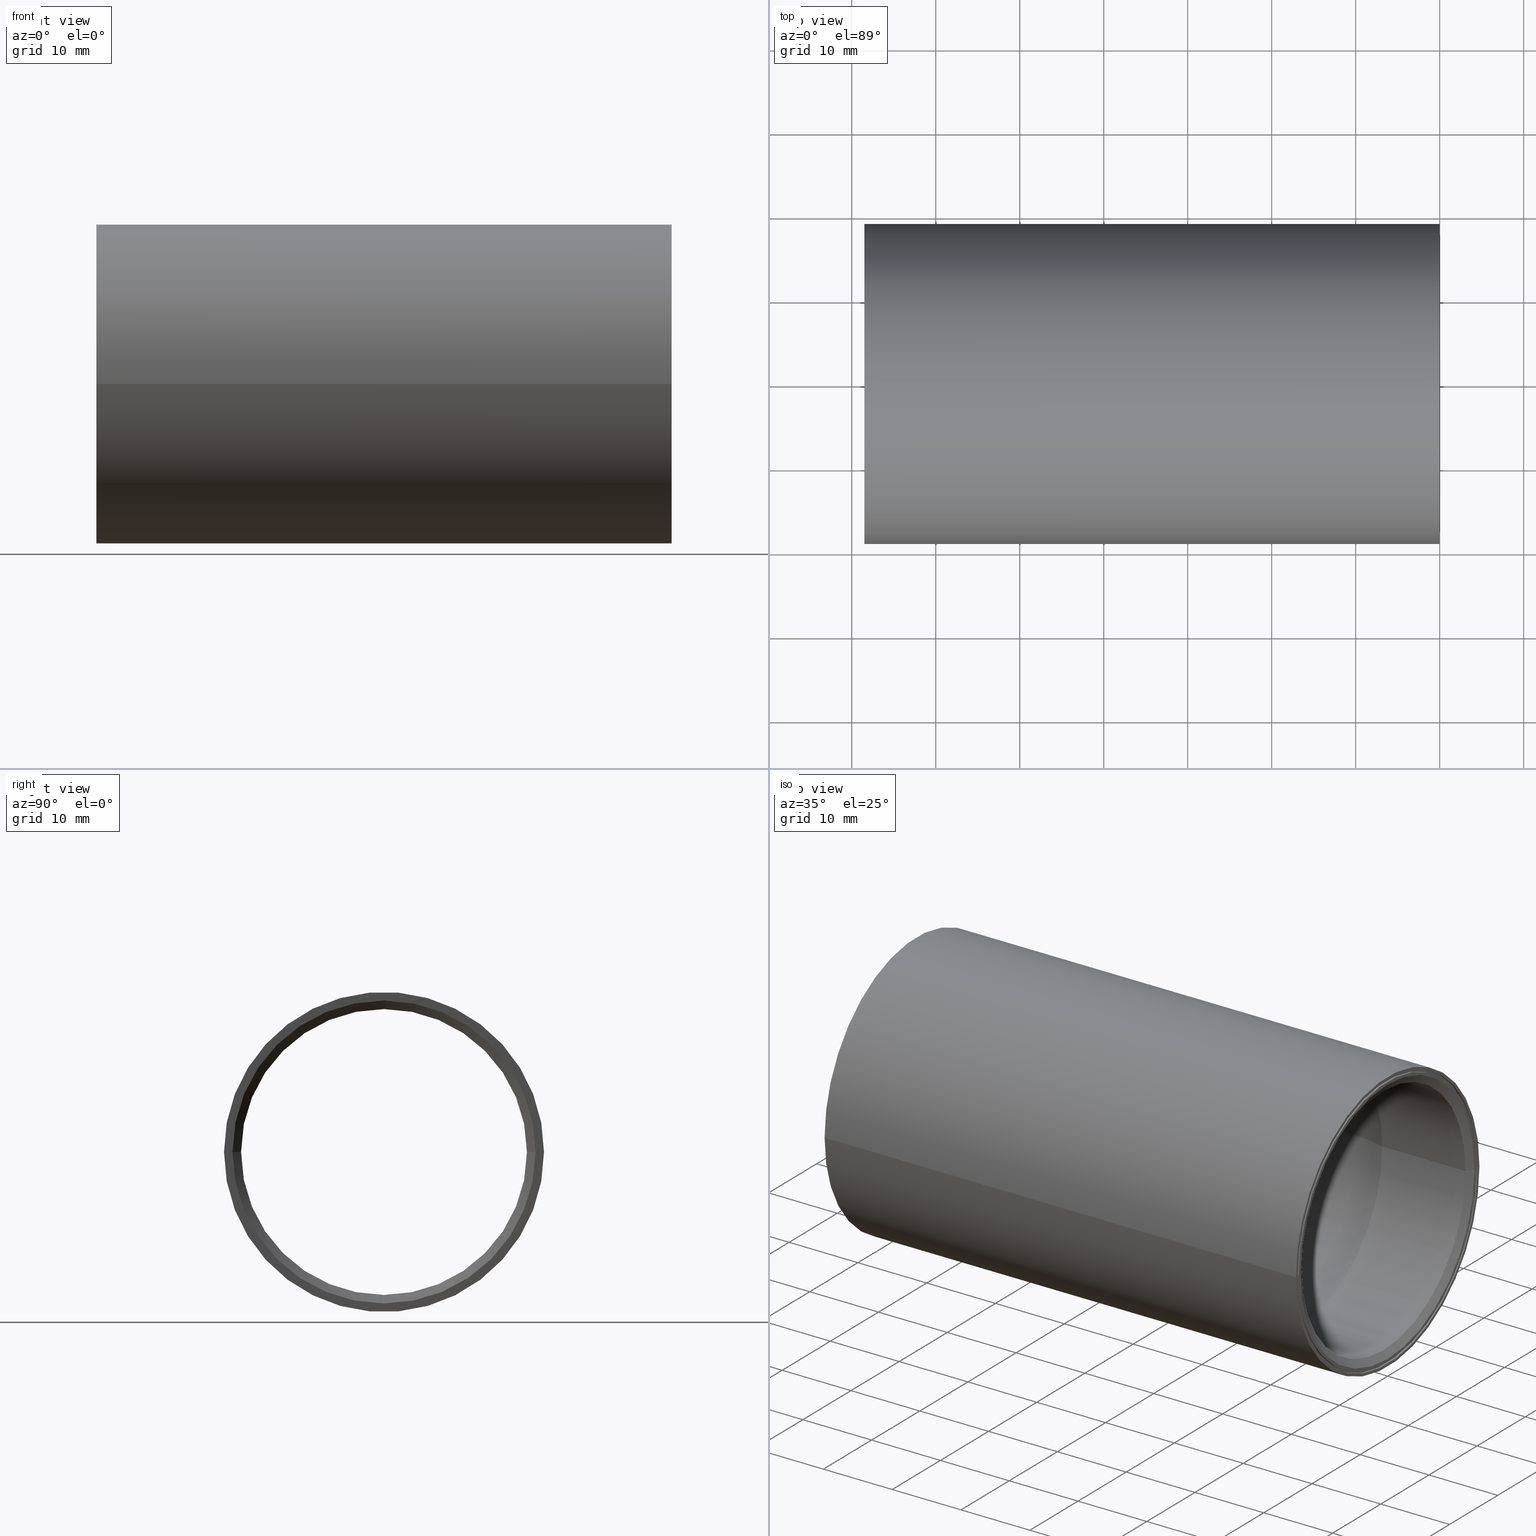
[diagram: canonical four-view strip — front | top / right | iso, engineering-drawing reading convention]
A machine part, canonical four-view strip (front | top / right | iso — engineering-drawing reading convention). The complete STEP part file that produces these views, byte-faithful:
ISO-10303-21;
HEADER;
FILE_DESCRIPTION (( 'STEP AP214' ),
    '1' );
FILE_NAME ('BB0001.STEP',
    '2015-12-29T23:40:49',
    ( 'JeffCAD' ),
    ( 'Microsoft' ),
    'SwSTEP 2.0',
    'SolidWorks 2016',
    '' );
FILE_SCHEMA (( 'AUTOMOTIVE_DESIGN' ));
ENDSEC;

DATA;
#1 = EDGE_CURVE ( 'NONE', #271, #545, #571, .T. ) ;
#2 = DIRECTION ( 'NONE',  ( 1.000000000000000000, 1.139601642983670200E-016, -0.0000000000000000000 ) ) ;
#3 = ORIENTED_EDGE ( 'NONE', *, *, #361, .T. ) ;
#4 = AXIS2_PLACEMENT_3D ( 'NONE', #566, #252, #299 ) ;
#5 = CARTESIAN_POINT ( 'NONE',  ( -8.727045640245106100E-018, 0.7100000000004025300, 0.0000000000000000000 ) ) ;
#6 = ORIENTED_EDGE ( 'NONE', *, *, #550, .T. ) ;
#7 = CARTESIAN_POINT ( 'NONE',  ( -0.01000000000000000000, -1.139601642983670400E-018, 0.0000000000000000000 ) ) ;
#8 = AXIS2_PLACEMENT_3D ( 'NONE', #470, #94, #409 ) ;
#9 = FACE_OUTER_BOUND ( 'NONE', #48, .T. ) ;
#10 = DIRECTION ( 'NONE',  ( 1.000000000000000000, 1.139601642983670200E-016, 0.0000000000000000000 ) ) ;
#11 = FACE_OUTER_BOUND ( 'NONE', #535, .T. ) ;
#12 = DIRECTION ( 'NONE',  ( 1.000000000000000000, 1.139601642983670200E-016, -0.0000000000000000000 ) ) ;
#13 = EDGE_CURVE ( 'NONE', #565, #226, #289, .T. ) ;
#14 = CARTESIAN_POINT ( 'NONE',  ( -0.01000000000000000000, -1.139601642983670400E-018, 0.0000000000000000000 ) ) ;
#15 = DIRECTION ( 'NONE',  ( 1.000000000000000000, 1.139601642983670200E-016, -0.0000000000000000000 ) ) ;
#16 = DIRECTION ( 'NONE',  ( 0.0000000000000000000, 0.0000000000000000000, -1.000000000000000000 ) ) ;
#17 = EDGE_LOOP ( 'NONE', ( #453, #528, #31, #39 ) ) ;
#18 = LINE ( 'NONE', #157, #680 ) ;
#19 = LENGTH_MEASURE_WITH_UNIT ( LENGTH_MEASURE( 0.02539999999999999900 ), #256 );
#20 = EDGE_CURVE ( 'NONE', #354, #591, #434, .T. ) ;
#21 = ADVANCED_FACE ( 'NONE', ( #22, #11 ), #686, .T. ) ;
#22 = FACE_BOUND ( 'NONE', #448, .T. ) ;
#23 = COLOUR_RGB ( '',0.7921568627450980000, 0.8196078431372548800, 0.9333333333333333500 ) ;
#24 = DIRECTION ( 'NONE',  ( 1.000000000000000000, 1.139601642983670200E-016, -0.0000000000000000000 ) ) ;
#25 = ORIENTED_EDGE ( 'NONE', *, *, #205, .T. ) ;
#26 = VECTOR ( 'NONE', #579, 39.37007874015748100 ) ;
#27 =( GEOMETRIC_REPRESENTATION_CONTEXT ( 3 ) GLOBAL_UNCERTAINTY_ASSIGNED_CONTEXT ( ( #389 ) ) GLOBAL_UNIT_ASSIGNED_CONTEXT ( ( #559, #676, #349 ) ) REPRESENTATION_CONTEXT ( 'NONE', 'WORKASPACE' ) );
#28 = EDGE_CURVE ( 'NONE', #284, #214, #136, .T. ) ;
#29 = DIRECTION ( 'NONE',  ( -1.139601642983670200E-016, 1.000000000000000000, 0.0000000000000000000 ) ) ;
#30 = ADVANCED_FACE ( 'NONE', ( #279 ), #665, .F. ) ;
#31 = ORIENTED_EDGE ( 'NONE', *, *, #492, .T. ) ;
#32 = ORIENTED_EDGE ( 'NONE', *, *, #13, .T. ) ;
#33 = AXIS2_PLACEMENT_3D ( 'NONE', #517, #197, #560 ) ;
#34 = DIRECTION ( 'NONE',  ( 1.000000000000000000, 1.139601642983670200E-016, -0.0000000000000000000 ) ) ;
#35 = FACE_OUTER_BOUND ( 'NONE', #334, .T. ) ;
#36 = CARTESIAN_POINT ( 'NONE',  ( -2.040875050040042100, -2.390366994456230100E-016, 0.0000000000000000000 ) ) ;
#37 = AXIS2_PLACEMENT_3D ( 'NONE', #474, #308, #97 ) ;
#38 = DIRECTION ( 'NONE',  ( 1.139601642983670200E-016, -1.000000000000000000, 0.0000000000000000000 ) ) ;
#39 = ORIENTED_EDGE ( 'NONE', *, *, #578, .T. ) ;
#40 = DIRECTION ( 'NONE',  ( 0.0000000000000000000, 0.0000000000000000000, 1.000000000000000000 ) ) ;
#41 = FACE_BOUND ( 'NONE', #115, .T. ) ;
#42 = CARTESIAN_POINT ( 'NONE',  ( 0.0000000000000000000, 0.0000000000000000000, 0.0000000000000000000 ) ) ;
#43 = CARTESIAN_POINT ( 'NONE',  ( -2.657000000000000500, -3.027921565407612500E-016, 0.0000000000000000000 ) ) ;
#44 = ORIENTED_EDGE ( 'NONE', *, *, #369, .T. ) ;
#45 = EDGE_CURVE ( 'NONE', #624, #354, #262, .T. ) ;
#46 = DIRECTION ( 'NONE',  ( 0.0000000000000000000, 0.0000000000000000000, -1.000000000000000000 ) ) ;
#47 = DIRECTION ( 'NONE',  ( 0.0000000000000000000, 0.0000000000000000000, -1.000000000000000000 ) ) ;
#48 = EDGE_LOOP ( 'NONE', ( #80, #68, #44, #238 ) ) ;
#49 = VECTOR ( 'NONE', #483, 39.37007874015748100 ) ;
#50 = CARTESIAN_POINT ( 'NONE',  ( -0.01000000000000000000, -1.139601642983670400E-018, 0.0000000000000000000 ) ) ;
#51 = ORIENTED_EDGE ( 'NONE', *, *, #516, .T. ) ;
#52 = DIRECTION ( 'NONE',  ( -1.132462497372958100E-016, 1.000000000000000000, 0.0000000000000000000 ) ) ;
#53 = CARTESIAN_POINT ( 'NONE',  ( -2.197000000000000100, -2.503704809635123700E-016, 0.0000000000000000000 ) ) ;
#54 = CARTESIAN_POINT ( 'NONE',  ( 0.0000000000000000000, 0.0000000000000000000, 0.0000000000000000000 ) ) ;
#55 = EDGE_LOOP ( 'NONE', ( #343, #307 ) ) ;
#56 = DIRECTION ( 'NONE',  ( 1.000000000000000000, 1.139601642983670200E-016, -0.0000000000000000000 ) ) ;
#57 = FACE_BOUND ( 'NONE', #596, .T. ) ;
#58 = CARTESIAN_POINT ( 'NONE',  ( -0.01000000000000000000, -1.139601642983670400E-018, 0.0000000000000000000 ) ) ;
#59 = CARTESIAN_POINT ( 'NONE',  ( -2.040875050040042100, -2.390366994456230100E-016, 0.0000000000000000000 ) ) ;
#60 = EDGE_CURVE ( 'NONE', #660, #175, #411, .T. ) ;
#61 = FILL_AREA_STYLE_COLOUR ( '', #656 ) ;
#62 = EDGE_LOOP ( 'NONE', ( #224, #199, #606, #388 ) ) ;
#63 = CARTESIAN_POINT ( 'NONE',  ( -0.009999999999999916900, -0.7250000000004027700, 8.878689293823242400E-017 ) ) ;
#64 = EDGE_LOOP ( 'NONE', ( #189, #464, #25, #355 ) ) ;
#65 = ADVANCED_FACE ( 'NONE', ( #392 ), #378, .T. ) ;
#66 = CIRCLE ( 'NONE', #386, 0.6930940107679878200 ) ;
#67 = DIRECTION ( 'NONE',  ( 0.0000000000000000000, 1.000000000000000000, 0.0000000000000000000 ) ) ;
#68 = ORIENTED_EDGE ( 'NONE', *, *, #590, .F. ) ;
#69 = CARTESIAN_POINT ( 'NONE',  ( -2.697000000000000100, -3.073505631126958400E-016, 0.0000000000000000000 ) ) ;
#70 = VERTEX_POINT ( 'NONE', #261 ) ;
#71 = EDGE_CURVE ( 'NONE', #451, #486, #124, .T. ) ;
#72 = ADVANCED_FACE ( 'NONE', ( #537 ), #648, .T. ) ;
#73 = CIRCLE ( 'NONE', #167, 0.5000000000000001100 ) ;
#74 = LENGTH_MEASURE_WITH_UNIT ( LENGTH_MEASURE( 0.02539999999999999900 ), #581 );
#75 = AXIS2_PLACEMENT_3D ( 'NONE', #294, #605, #609 ) ;
#76 = AXIS2_PLACEMENT_3D ( 'NONE', #570, #204, #527 ) ;
#77 = EDGE_LOOP ( 'NONE', ( #338, #255, #169, #79 ) ) ;
#78 = ORIENTED_EDGE ( 'NONE', *, *, #450, .T. ) ;
#79 = ORIENTED_EDGE ( 'NONE', *, *, #679, .F. ) ;
#80 = ORIENTED_EDGE ( 'NONE', *, *, #550, .F. ) ;
#81 = CIRCLE ( 'NONE', #285, 0.7250000000004027700 ) ;
#82 = EDGE_CURVE ( 'NONE', #476, #403, #243, .T. ) ;
#83 = TOROIDAL_SURFACE ( 'NONE', #258, 0.1950000000004024600, 0.5000000000000001100 ) ;
#84 = VERTEX_POINT ( 'NONE', #353 ) ;
#85 = DIRECTION ( 'NONE',  ( -1.139601642983670200E-016, 1.000000000000000000, 0.0000000000000000000 ) ) ;
#86 = CARTESIAN_POINT ( 'NONE',  ( -0.01000000000000000000, -1.139601642983670400E-018, 0.0000000000000000000 ) ) ;
#87 = PRESENTATION_STYLE_ASSIGNMENT (( #670 ) ) ;
#88 = DIRECTION ( 'NONE',  ( -1.132462497372958100E-016, 1.000000000000000000, 0.0000000000000000000 ) ) ;
#89 = EDGE_CURVE ( 'NONE', #600, #486, #513, .T. ) ;
#90 = CARTESIAN_POINT ( 'NONE',  ( -0.6561249499599602900, -0.6950000000004030700, 8.511295254079037300E-017 ) ) ;
#91 = ORIENTED_EDGE ( 'NONE', *, *, #134, .T. ) ;
#92 = ORIENTED_EDGE ( 'NONE', *, *, #89, .T. ) ;
#93 = PRODUCT_CONTEXT ( 'NONE', #465, 'mechanical' ) ;
#94 = DIRECTION ( 'NONE',  ( 1.000000000000000000, 1.139601642983670200E-016, -0.0000000000000000000 ) ) ;
#95 = DIRECTION ( 'NONE',  ( -1.019346266292023000E-016, 1.000000000000000000, 0.0000000000000000000 ) ) ;
#96 = CIRCLE ( 'NONE', #143, 0.6700000000004026100 ) ;
#97 = DIRECTION ( 'NONE',  ( -1.139601642983670000E-016, 1.000000000000000000, 0.0000000000000000000 ) ) ;
#98 = FACE_OUTER_BOUND ( 'NONE', #64, .T. ) ;
#99 = DIRECTION ( 'NONE',  ( 1.000000000000000000, 1.139601642983670200E-016, -0.0000000000000000000 ) ) ;
#100 = CARTESIAN_POINT ( 'NONE',  ( -0.01000000000000000000, -1.139601642983670400E-018, 0.0000000000000000000 ) ) ;
#101 = DIRECTION ( 'NONE',  ( 1.000000000000000000, 1.139601642983670200E-016, 0.0000000000000000000 ) ) ;
#102 = CARTESIAN_POINT ( 'NONE',  ( -0.01000000000000008300, 0.7250000000004027700, 0.0000000000000000000 ) ) ;
#103 = CARTESIAN_POINT ( 'NONE',  ( -1.309543155211255600E-017, 0.7500000000000001100, 0.0000000000000000000 ) ) ;
#104 = STYLED_ITEM ( 'NONE', ( #188 ), #277 ) ;
#105 = EDGE_CURVE ( 'NONE', #337, #70, #549, .T. ) ;
#106 = DIRECTION ( 'NONE',  ( 0.4999999999999961100, -0.8660254037844408200, 1.060575238724909900E-016 ) ) ;
#107 = ORIENTED_EDGE ( 'NONE', *, *, #193, .F. ) ;
#108 = CARTESIAN_POINT ( 'NONE',  ( -0.02309401076758469500, 0.6700000000004026100, 0.0000000000000000000 ) ) ;
#109 = DIRECTION ( 'NONE',  ( 1.000000000000000000, 1.139601642983670200E-016, -0.0000000000000000000 ) ) ;
#110 = AXIS2_PLACEMENT_3D ( 'NONE', #393, #24, #339 ) ;
#111 = DIRECTION ( 'NONE',  ( 0.0000000000000000000, 0.0000000000000000000, -1.000000000000000000 ) ) ;
#112 = DIMENSIONAL_EXPONENTS ( 1.000000000000000000, 0.0000000000000000000, 0.0000000000000000000, 0.0000000000000000000, 0.0000000000000000000, 0.0000000000000000000, 0.0000000000000000000 ) ;
#113 = LINE ( 'NONE', #523, #521 ) ;
#114 = CARTESIAN_POINT ( 'NONE',  ( -0.6561249499599604000, -6.829619984160658000E-017, 0.0000000000000000000 ) ) ;
#115 = EDGE_LOOP ( 'NONE', ( #614, #194 ) ) ;
#116 = PRODUCT_DEFINITION_CONTEXT ( 'detailed design', #469, 'design' ) ;
#117 = EDGE_LOOP ( 'NONE', ( #629, #6, #604, #512 ) ) ;
#118 = CARTESIAN_POINT ( 'NONE',  ( -8.262111911636198800E-017, 0.7250000000004027700, 0.0000000000000000000 ) ) ;
#119 = AXIS2_PLACEMENT_3D ( 'NONE', #531, #625, #154 ) ;
#120 = ORIENTED_EDGE ( 'NONE', *, *, #603, .T. ) ;
#121 = CYLINDRICAL_SURFACE ( 'NONE', #4, 0.6700000000004026100 ) ;
#122 = DIRECTION ( 'NONE',  ( 0.0000000000000000000, 1.000000000000000000, 0.0000000000000000000 ) ) ;
#123 = VECTOR ( 'NONE', #396, 39.37007874015748100 ) ;
#124 = CIRCLE ( 'NONE', #8, 0.7500000000000001100 ) ;
#125 = ADVANCED_FACE ( 'NONE', ( #683 ), #500, .T. ) ;
#126 = EDGE_CURVE ( 'NONE', #497, #444, #632, .T. ) ;
#127 = CARTESIAN_POINT ( 'NONE',  ( -2.040875050040042100, -2.325784560150012000E-016, 0.0000000000000000000 ) ) ;
#128 = DIRECTION ( 'NONE',  ( -1.000000000000000000, 0.0000000000000000000, 0.0000000000000000000 ) ) ;
#129 = ORIENTED_EDGE ( 'NONE', *, *, #533, .F. ) ;
#130 = CIRCLE ( 'NONE', #650, 0.7250000000004027700 ) ;
#131 = ADVANCED_FACE ( 'NONE', ( #98 ), #83, .F. ) ;
#132 = EDGE_LOOP ( 'NONE', ( #200, #499 ) ) ;
#133 = CONICAL_SURFACE ( 'NONE', #463, 0.6700000000004026100, 1.047197551196602300 ) ;
#134 = EDGE_CURVE ( 'NONE', #545, #271, #636, .T. ) ;
#135 = SHAPE_DEFINITION_REPRESENTATION ( #402, #277 ) ;
#136 = CIRCLE ( 'NONE', #410, 0.7350000000004026600 ) ;
#137 = ADVANCED_FACE ( 'NONE', ( #231 ), #333, .F. ) ;
#138 = CARTESIAN_POINT ( 'NONE',  ( -0.01000000000000008300, 0.7350000000004026600, 0.0000000000000000000 ) ) ;
#139 = PRESENTATION_LAYER_ASSIGNMENT (  '', '', ( #104 ) ) ;
#140 = EDGE_CURVE ( 'NONE', #192, #326, #503, .T. ) ;
#141 = CARTESIAN_POINT ( 'NONE',  ( -2.697000000000000100, 0.6930940107679874900, 8.487953617952173200E-017 ) ) ;
#142 = EDGE_LOOP ( 'NONE', ( #423, #51, #510, #315 ) ) ;
#143 = AXIS2_PLACEMENT_3D ( 'NONE', #412, #472, #95 ) ;
#144 = ORIENTED_EDGE ( 'NONE', *, *, #556, .F. ) ;
#145 = DIRECTION ( 'NONE',  ( -1.139601642983670500E-016, 1.000000000000000000, 0.0000000000000000000 ) ) ;
#146 = DIRECTION ( 'NONE',  ( 1.000000000000000000, 1.139601642983670200E-016, -0.0000000000000000000 ) ) ;
#147 = VECTOR ( 'NONE', #616, 39.37007874015748100 ) ;
#148 = FILL_AREA_STYLE_COLOUR ( '', #23 ) ;
#149 = DIRECTION ( 'NONE',  ( -1.139601642983670000E-016, 1.000000000000000000, 0.0000000000000000000 ) ) ;
#150 = AXIS2_PLACEMENT_3D ( 'NONE', #442, #15, #380 ) ;
#151 = UNCERTAINTY_MEASURE_WITH_UNIT (LENGTH_MEASURE( 1.000000000000000100E-005 ), #621, 'distance_accuracy_value', 'NONE');
#152 = CARTESIAN_POINT ( 'NONE',  ( 0.0000000000000000000, 0.7500000000000001100, 0.0000000000000000000 ) ) ;
#153 = APPLICATION_PROTOCOL_DEFINITION ( 'draft international standard', 'automotive_design', 1998, #469 ) ;
#154 = DIRECTION ( 'NONE',  ( -1.148082669750507400E-016, 1.000000000000000000, 0.0000000000000000000 ) ) ;
#155 = VECTOR ( 'NONE', #166, 39.37007874015748100 ) ;
#156 = CARTESIAN_POINT ( 'NONE',  ( 2.000732498201575200E-050, -1.755641991672913400E-034, 0.0000000000000000000 ) ) ;
#157 = CARTESIAN_POINT ( 'NONE',  ( 7.635331007995186000E-017, -0.6700000000004031600, 8.205133554292203400E-017 ) ) ;
#158 = DIRECTION ( 'NONE',  ( 0.0000000000000000000, -1.000000000000000000, 1.224646799147353200E-016 ) ) ;
#159 = DIRECTION ( 'NONE',  ( 1.000000000000000000, 1.139601642983670200E-016, 0.0000000000000000000 ) ) ;
#160 = EDGE_CURVE ( 'NONE', #70, #337, #217, .T. ) ;
#161 = DIRECTION ( 'NONE',  ( -1.000000000000000000, -1.139601642983659100E-016, -0.0000000000000000000 ) ) ;
#162 = EDGE_LOOP ( 'NONE', ( #588, #185, #671, #129 ) ) ;
#163 = DIRECTION ( 'NONE',  ( 1.000000000000000000, 1.139601642983670200E-016, -0.0000000000000000000 ) ) ;
#164 = CARTESIAN_POINT ( 'NONE',  ( -0.02309401076758461900, -2.631797261382200400E-018, 0.0000000000000000000 ) ) ;
#165 = VECTOR ( 'NONE', #270, 39.37007874015748100 ) ;
#166 = DIRECTION ( 'NONE',  ( 0.4999999999999958400, 0.8660254037844409300, 0.0000000000000000000 ) ) ;
#167 = AXIS2_PLACEMENT_3D ( 'NONE', #178, #592, #280 ) ;
#168 = CARTESIAN_POINT ( 'NONE',  ( -0.01000000000000008300, 0.7250000000004027700, 0.0000000000000000000 ) ) ;
#169 = ORIENTED_EDGE ( 'NONE', *, *, #183, .T. ) ;
#170 = ORIENTED_EDGE ( 'NONE', *, *, #230, .F. ) ;
#171 = DIRECTION ( 'NONE',  ( -1.139601642983670200E-016, 1.000000000000000000, 0.0000000000000000000 ) ) ;
#172 = CONICAL_SURFACE ( 'NONE', #365, 0.6930940107679878200, 0.5235987755982959300 ) ;
#173 = CARTESIAN_POINT ( 'NONE',  ( 2.000732498201575200E-050, -1.755641991672913400E-034, 0.0000000000000000000 ) ) ;
#174 = EDGE_CURVE ( 'NONE', #545, #70, #73, .T. ) ;
#175 = VERTEX_POINT ( 'NONE', #180 ) ;
#176 = FACE_OUTER_BOUND ( 'NONE', #645, .T. ) ;
#177 = ADVANCED_FACE ( 'NONE', ( #57, #490 ), #651, .T. ) ;
#178 = CARTESIAN_POINT ( 'NONE',  ( -2.040875050040042100, -0.1950000000004027100, 2.388061258342267500E-017 ) ) ;
#179 = ORIENTED_EDGE ( 'NONE', *, *, #526, .F. ) ;
#180 = CARTESIAN_POINT ( 'NONE',  ( -2.657000000000000500, -0.6700000000004035000, 8.205133554292203400E-017 ) ) ;
#181 = LINE ( 'NONE', #215, #26 ) ;
#182 = MECHANICAL_DESIGN_GEOMETRIC_PRESENTATION_REPRESENTATION (  '', ( #104 ), #216 ) ;
#183 = EDGE_CURVE ( 'NONE', #624, #476, #601, .T. ) ;
#184 = ORIENTED_EDGE ( 'NONE', *, *, #495, .T. ) ;
#185 = ORIENTED_EDGE ( 'NONE', *, *, #612, .F. ) ;
#186 = AXIS2_PLACEMENT_3D ( 'NONE', #664, #534, #263 ) ;
#187 = LINE ( 'NONE', #191, #555 ) ;
#188 = PRESENTATION_STYLE_ASSIGNMENT (( #569 ) ) ;
#189 = ORIENTED_EDGE ( 'NONE', *, *, #174, .F. ) ;
#190 = AXIS2_PLACEMENT_3D ( 'NONE', #282, #653, #234 ) ;
#191 = CARTESIAN_POINT ( 'NONE',  ( 7.920231418741098500E-017, -0.6950000000004027400, 8.511295254079037300E-017 ) ) ;
#192 = VERTEX_POINT ( 'NONE', #63 ) ;
#193 = EDGE_CURVE ( 'NONE', #398, #563, #201, .T. ) ;
#194 = ORIENTED_EDGE ( 'NONE', *, *, #395, .T. ) ;
#195 = CARTESIAN_POINT ( 'NONE',  ( 8.262111911636198800E-017, -0.7250000000004027700, 8.878689293823242400E-017 ) ) ;
#196 = FACE_OUTER_BOUND ( 'NONE', #117, .T. ) ;
#197 = DIRECTION ( 'NONE',  ( 1.000000000000000000, 1.139601642983670200E-016, -0.0000000000000000000 ) ) ;
#198 =( NAMED_UNIT ( * ) PLANE_ANGLE_UNIT ( ) SI_UNIT ( $, .RADIAN. ) );
#199 = ORIENTED_EDGE ( 'NONE', *, *, #640, .T. ) ;
#200 = ORIENTED_EDGE ( 'NONE', *, *, #590, .T. ) ;
#201 = CIRCLE ( 'NONE', #296, 0.7350000000004026600 ) ;
#202 = DIRECTION ( 'NONE',  ( -1.000000000000000000, -1.139601642983670200E-016, 0.0000000000000000000 ) ) ;
#203 = SURFACE_SIDE_STYLE ('',( #290 ) ) ;
#204 = DIRECTION ( 'NONE',  ( -0.0000000000000000000, 0.0000000000000000000, -1.000000000000000000 ) ) ;
#205 = EDGE_CURVE ( 'NONE', #271, #337, #461, .T. ) ;
#206 = ORIENTED_EDGE ( 'NONE', *, *, #556, .T. ) ;
#207 = CARTESIAN_POINT ( 'NONE',  ( -0.6561249499599604000, -0.1950000000004029100, 2.388061258342272200E-017 ) ) ;
#208 = ORIENTED_EDGE ( 'NONE', *, *, #612, .T. ) ;
#209 = EDGE_LOOP ( 'NONE', ( #646, #208, #320, #659 ) ) ;
#210 = VECTOR ( 'NONE', #99, 39.37007874015748100 ) ;
#211 = CARTESIAN_POINT ( 'NONE',  ( -2.697000000000000100, -3.073505631126958400E-016, 0.0000000000000000000 ) ) ;
#212 = VERTEX_POINT ( 'NONE', #118 ) ;
#213 = DIRECTION ( 'NONE',  ( 1.000000000000000000, 1.139601642983670200E-016, 0.0000000000000000000 ) ) ;
#214 = VERTEX_POINT ( 'NONE', #493 ) ;
#215 = CARTESIAN_POINT ( 'NONE',  ( -0.009999999999999916900, -0.7350000000004026600, 9.001153973737977500E-017 ) ) ;
#216 =( GEOMETRIC_REPRESENTATION_CONTEXT ( 3 ) GLOBAL_UNCERTAINTY_ASSIGNED_CONTEXT ( ( #151 ) ) GLOBAL_UNIT_ASSIGNED_CONTEXT ( ( #621, #301, #681 ) ) REPRESENTATION_CONTEXT ( 'NONE', 'WORKASPACE' ) );
#217 = CIRCLE ( 'NONE', #322, 0.6950000000004027400 ) ;
#218 = DIMENSIONAL_EXPONENTS ( 1.000000000000000000, 0.0000000000000000000, 0.0000000000000000000, 0.0000000000000000000, 0.0000000000000000000, 0.0000000000000000000, 0.0000000000000000000 ) ;
#219 = AXIS2_PLACEMENT_3D ( 'NONE', #344, #458, #85 ) ;
#220 = ADVANCED_FACE ( 'NONE', ( #318 ), #172, .F. ) ;
#221 = AXIS2_PLACEMENT_3D ( 'NONE', #638, #56, #149 ) ;
#222 = ORIENTED_EDGE ( 'NONE', *, *, #13, .F. ) ;
#223 = EDGE_LOOP ( 'NONE', ( #496, #507, #275, #283 ) ) ;
#224 = ORIENTED_EDGE ( 'NONE', *, *, #60, .F. ) ;
#225 = DIRECTION ( 'NONE',  ( 0.0000000000000000000, -1.000000000000000000, 0.0000000000000000000 ) ) ;
#226 = VERTEX_POINT ( 'NONE', #5 ) ;
#227 = FACE_OUTER_BOUND ( 'NONE', #509, .T. ) ;
#228 = AXIS2_PLACEMENT_3D ( 'NONE', #491, #489, #171 ) ;
#229 = DIRECTION ( 'NONE',  ( 1.000000000000000000, 1.139601642983670200E-016, 0.0000000000000000000 ) ) ;
#230 = EDGE_CURVE ( 'NONE', #591, #565, #449, .T. ) ;
#231 = FACE_OUTER_BOUND ( 'NONE', #162, .T. ) ;
#232 = ORIENTED_EDGE ( 'NONE', *, *, #183, .F. ) ;
#233 = CARTESIAN_POINT ( 'NONE',  ( -0.009999999999999916900, -0.7250000000004027700, 8.878689293823242400E-017 ) ) ;
#234 = DIRECTION ( 'NONE',  ( 0.0000000000000000000, -1.000000000000000000, 0.0000000000000000000 ) ) ;
#235 = AXIS2_PLACEMENT_3D ( 'NONE', #325, #12, #377 ) ;
#236 = ADVANCED_FACE ( 'NONE', ( #35 ), #586, .F. ) ;
#237 = SURFACE_STYLE_FILL_AREA ( #668 ) ;
#238 = ORIENTED_EDGE ( 'NONE', *, *, #652, .T. ) ;
#239 = VERTEX_POINT ( 'NONE', #352 ) ;
#240 = EDGE_CURVE ( 'NONE', #226, #84, #300, .T. ) ;
#241 = VECTOR ( 'NONE', #310, 39.37007874015748100 ) ;
#242 = DIRECTION ( 'NONE',  ( 1.000000000000000000, 1.139601642983670200E-016, -0.0000000000000000000 ) ) ;
#243 = CIRCLE ( 'NONE', #76, 0.5000000000000000000 ) ;
#244 = CARTESIAN_POINT ( 'NONE',  ( -2.040875050040042100, 0.6950000000004025200, 0.0000000000000000000 ) ) ;
#245 = DIRECTION ( 'NONE',  ( 0.0000000000000000000, 0.0000000000000000000, -1.000000000000000000 ) ) ;
#246 = ADVANCED_FACE ( 'NONE', ( #346 ), #286, .F. ) ;
#247 = ORIENTED_EDGE ( 'NONE', *, *, #45, .F. ) ;
#248 = CARTESIAN_POINT ( 'NONE',  ( -0.009999999999999916900, -0.7350000000004026600, 9.001153973737977500E-017 ) ) ;
#249 = ORIENTED_EDGE ( 'NONE', *, *, #450, .F. ) ;
#250 = AXIS2_PLACEMENT_3D ( 'NONE', #211, #575, #266 ) ;
#251 = CIRCLE ( 'NONE', #327, 0.6700000000004031600 ) ;
#252 = DIRECTION ( 'NONE',  ( 1.000000000000000000, 1.139601642983670200E-016, -0.0000000000000000000 ) ) ;
#253 = ORIENTED_EDGE ( 'NONE', *, *, #230, .T. ) ;
#254 = DIRECTION ( 'NONE',  ( 1.000000000000000000, 1.139601642983670200E-016, -0.0000000000000000000 ) ) ;
#255 = ORIENTED_EDGE ( 'NONE', *, *, #293, .T. ) ;
#256 =( LENGTH_UNIT ( ) NAMED_UNIT ( * ) SI_UNIT ( $, .METRE. ) );
#257 = CARTESIAN_POINT ( 'NONE',  ( -8.547012322377526000E-017, 0.7500000000000001100, 0.0000000000000000000 ) ) ;
#258 = AXIS2_PLACEMENT_3D ( 'NONE', #59, #544, #597 ) ;
#259 = TOROIDAL_SURFACE ( 'NONE', #615, 0.1950000000004024600, 0.5000000000000001100 ) ;
#260 = LINE ( 'NONE', #138, #123 ) ;
#261 = CARTESIAN_POINT ( 'NONE',  ( -2.040875050040042100, -0.6950000000004029600, 8.511295254079034800E-017 ) ) ;
#262 = CIRCLE ( 'NONE', #587, 0.5000000000000000000 ) ;
#263 = DIRECTION ( 'NONE',  ( -1.019346266292023000E-016, 1.000000000000000000, 0.0000000000000000000 ) ) ;
#264 = AXIS2_PLACEMENT_3D ( 'NONE', #156, #101, #628 ) ;
#265 = EDGE_CURVE ( 'NONE', #600, #239, #567, .T. ) ;
#266 = DIRECTION ( 'NONE',  ( 0.0000000000000000000, 1.000000000000000000, 0.0000000000000000000 ) ) ;
#267 = DIRECTION ( 'NONE',  ( -1.139601642983670200E-016, 1.000000000000000000, 0.0000000000000000000 ) ) ;
#268 = CARTESIAN_POINT ( 'NONE',  ( -2.697000000000000100, -3.073505631126958400E-016, 0.0000000000000000000 ) ) ;
#269 = AXIS2_PLACEMENT_3D ( 'NONE', #14, #229, #370 ) ;
#270 = DIRECTION ( 'NONE',  ( 1.000000000000000000, 1.139601642983670200E-016, -0.0000000000000000000 ) ) ;
#271 = VERTEX_POINT ( 'NONE', #520 ) ;
#272 = CARTESIAN_POINT ( 'NONE',  ( -0.02309401076758461900, -2.631797261382200400E-018, 0.0000000000000000000 ) ) ;
#273 = ORIENTED_EDGE ( 'NONE', *, *, #205, .F. ) ;
#274 = DIRECTION ( 'NONE',  ( 1.000000000000000000, 1.139601642983670200E-016, -0.0000000000000000000 ) ) ;
#275 = ORIENTED_EDGE ( 'NONE', *, *, #603, .F. ) ;
#276 = CYLINDRICAL_SURFACE ( 'NONE', #654, 0.7350000000004026600 ) ;
#277 = ADVANCED_BREP_SHAPE_REPRESENTATION ( 'BB0001', ( #641, #314 ), #27 ) ;
#278 = EDGE_CURVE ( 'NONE', #175, #497, #431, .T. ) ;
#279 = FACE_OUTER_BOUND ( 'NONE', #362, .T. ) ;
#280 = DIRECTION ( 'NONE',  ( 0.0000000000000000000, -1.000000000000000000, 1.224646799147353200E-016 ) ) ;
#281 = CIRCLE ( 'NONE', #546, 0.7350000000004026600 ) ;
#282 = CARTESIAN_POINT ( 'NONE',  ( -2.697000000000000100, -3.073505631126958400E-016, 0.0000000000000000000 ) ) ;
#283 = ORIENTED_EDGE ( 'NONE', *, *, #558, .F. ) ;
#284 = VERTEX_POINT ( 'NONE', #248 ) ;
#285 = AXIS2_PLACEMENT_3D ( 'NONE', #468, #684, #358 ) ;
#286 = CYLINDRICAL_SURFACE ( 'NONE', #584, 0.6700000000004031600 ) ;
#287 = ADVANCED_FACE ( 'NONE', ( #9 ), #276, .F. ) ;
#288 = AXIS2_PLACEMENT_3D ( 'NONE', #69, #502, #644 ) ;
#289 = LINE ( 'NONE', #421, #155 ) ;
#290 = SURFACE_STYLE_FILL_AREA ( #525 ) ;
#291 = CARTESIAN_POINT ( 'NONE',  ( 1.709402464475505200E-016, -0.7500000000000001100, 9.184850993605150900E-017 ) ) ;
#292 = AXIS2_PLACEMENT_3D ( 'NONE', #351, #462, #38 ) ;
#293 = EDGE_CURVE ( 'NONE', #70, #624, #187, .T. ) ;
#294 = CARTESIAN_POINT ( 'NONE',  ( 0.0000000000000000000, 0.0000000000000000000, 0.0000000000000000000 ) ) ;
#295 = FACE_OUTER_BOUND ( 'NONE', #329, .T. ) ;
#296 = AXIS2_PLACEMENT_3D ( 'NONE', #173, #589, #16 ) ;
#297 = ORIENTED_EDGE ( 'NONE', *, *, #482, .T. ) ;
#298 = DIRECTION ( 'NONE',  ( 1.000000000000000000, 1.139601642983670200E-016, -0.0000000000000000000 ) ) ;
#299 = DIRECTION ( 'NONE',  ( -1.139601642983670200E-016, 1.000000000000000000, 0.0000000000000000000 ) ) ;
#300 = CIRCLE ( 'NONE', #446, 0.7100000000004025300 ) ;
#301 =( NAMED_UNIT ( * ) PLANE_ANGLE_UNIT ( ) SI_UNIT ( $, .RADIAN. ) );
#302 = ORIENTED_EDGE ( 'NONE', *, *, #626, .F. ) ;
#303 = EDGE_CURVE ( 'NONE', #175, #545, #18, .T. ) ;
#304 = CYLINDRICAL_SURFACE ( 'NONE', #611, 0.7250000000004027700 ) ;
#305 = CARTESIAN_POINT ( 'NONE',  ( -0.6561249499599606200, 0.6950000000004027400, 0.0000000000000000000 ) ) ;
#306 = ADVANCED_FACE ( 'NONE', ( #390 ), #121, .F. ) ;
#307 = ORIENTED_EDGE ( 'NONE', *, *, #533, .T. ) ;
#308 = DIRECTION ( 'NONE',  ( 1.000000000000000000, 1.139601642983670200E-016, -0.0000000000000000000 ) ) ;
#309 = CARTESIAN_POINT ( 'NONE',  ( -2.657000000000000500, -3.027921565407612500E-016, 0.0000000000000000000 ) ) ;
#310 = DIRECTION ( 'NONE',  ( 1.000000000000000000, 1.139601642983670200E-016, -0.0000000000000000000 ) ) ;
#311 = VECTOR ( 'NONE', #106, 39.37007874015748900 ) ;
#312 = DIRECTION ( 'NONE',  ( 0.0000000000000000000, -1.000000000000000000, 0.0000000000000000000 ) ) ;
#313 = ORIENTED_EDGE ( 'NONE', *, *, #293, .F. ) ;
#314 = AXIS2_PLACEMENT_3D ( 'NONE', #54, #40, #408 ) ;
#315 = ORIENTED_EDGE ( 'NONE', *, *, #89, .F. ) ;
#316 = DIRECTION ( 'NONE',  ( -1.146764549578525900E-016, 1.000000000000000000, 0.0000000000000000000 ) ) ;
#317 = DIRECTION ( 'NONE',  ( -1.146764549578525900E-016, 1.000000000000000000, 0.0000000000000000000 ) ) ;
#318 = FACE_OUTER_BOUND ( 'NONE', #62, .T. ) ;
#319 = AXIS2_PLACEMENT_3D ( 'NONE', #42, #573, #455 ) ;
#320 = ORIENTED_EDGE ( 'NONE', *, *, #526, .T. ) ;
#321 = ADVANCED_FACE ( 'NONE', ( #548 ), #259, .F. ) ;
#322 = AXIS2_PLACEMENT_3D ( 'NONE', #127, #379, #67 ) ;
#323 = DIRECTION ( 'NONE',  ( 1.000000000000000000, 1.139601642983670200E-016, 0.0000000000000000000 ) ) ;
#324 = ORIENTED_EDGE ( 'NONE', *, *, #105, .F. ) ;
#325 = CARTESIAN_POINT ( 'NONE',  ( -0.6561249499599604000, -7.477210709769493600E-017, 0.0000000000000000000 ) ) ;
#326 = VERTEX_POINT ( 'NONE', #195 ) ;
#327 = AXIS2_PLACEMENT_3D ( 'NONE', #309, #161, #416 ) ;
#328 = CYLINDRICAL_SURFACE ( 'NONE', #429, 0.6950000000004027400 ) ;
#329 = EDGE_LOOP ( 'NONE', ( #371, #456 ) ) ;
#330 = DIRECTION ( 'NONE',  ( 1.000000000000000000, 1.139601642983670200E-016, 0.0000000000000000000 ) ) ;
#331 = CARTESIAN_POINT ( 'NONE',  ( -2.040875050040042100, 0.1950000000004022400, 0.0000000000000000000 ) ) ;
#332 = AXIS2_PLACEMENT_3D ( 'NONE', #331, #383, #128 ) ;
#333 = CONICAL_SURFACE ( 'NONE', #288, 0.6930940107679878200, 0.5235987755982959300 ) ;
#334 = EDGE_LOOP ( 'NONE', ( #232, #642, #78, #485 ) ) ;
#335 = AXIS2_PLACEMENT_3D ( 'NONE', #53, #2, #484 ) ;
#336 = CIRCLE ( 'NONE', #348, 0.6700000000004026100 ) ;
#337 = VERTEX_POINT ( 'NONE', #244 ) ;
#338 = ORIENTED_EDGE ( 'NONE', *, *, #160, .F. ) ;
#339 = DIRECTION ( 'NONE',  ( -1.139601642983670000E-016, 1.000000000000000000, 0.0000000000000000000 ) ) ;
#340 = LINE ( 'NONE', #564, #210 ) ;
#341 = CARTESIAN_POINT ( 'NONE',  ( -0.4999999999999998300, -0.6700000000004026100, 8.358214404185617900E-017 ) ) ;
#342 =( CONVERSION_BASED_UNIT ( 'INCH', #619 ) LENGTH_UNIT ( ) NAMED_UNIT ( #426 ) );
#343 = ORIENTED_EDGE ( 'NONE', *, *, #126, .T. ) ;
#344 = CARTESIAN_POINT ( 'NONE',  ( 0.0000000000000000000, 0.0000000000000000000, 0.0000000000000000000 ) ) ;
#345 = PRODUCT_DEFINITION ( 'UNKNOWN', '', #382, #116 ) ;
#346 = FACE_OUTER_BOUND ( 'NONE', #209, .T. ) ;
#347 = DIRECTION ( 'NONE',  ( 0.0000000000000000000, 1.000000000000000000, 0.0000000000000000000 ) ) ;
#348 = AXIS2_PLACEMENT_3D ( 'NONE', #272, #637, #316 ) ;
#349 =( NAMED_UNIT ( * ) SI_UNIT ( $, .STERADIAN. ) SOLID_ANGLE_UNIT ( ) );
#350 = ADVANCED_FACE ( 'NONE', ( #661 ), #391, .F. ) ;
#351 = CARTESIAN_POINT ( 'NONE',  ( -2.697000000000000100, 0.7499999999999997800, 0.0000000000000000000 ) ) ;
#352 = CARTESIAN_POINT ( 'NONE',  ( -2.697000000000000100, -0.7500000000000003300, 9.184850993605152100E-017 ) ) ;
#353 = CARTESIAN_POINT ( 'NONE',  ( 1.534764289835705100E-016, -0.7100000000004025300, 8.694992273951137400E-017 ) ) ;
#354 = VERTEX_POINT ( 'NONE', #341 ) ;
#355 = ORIENTED_EDGE ( 'NONE', *, *, #105, .T. ) ;
#356 = DIRECTION ( 'NONE',  ( -1.000000000000000000, -1.139601642983659100E-016, -0.0000000000000000000 ) ) ;
#357 = CYLINDRICAL_SURFACE ( 'NONE', #219, 0.6950000000004027400 ) ;
#358 = DIRECTION ( 'NONE',  ( 0.0000000000000000000, 0.0000000000000000000, -1.000000000000000000 ) ) ;
#359 = VECTOR ( 'NONE', #466, 39.37007874015748100 ) ;
#360 = AXIS2_PLACEMENT_3D ( 'NONE', #7, #323, #435 ) ;
#361 = EDGE_CURVE ( 'NONE', #476, #624, #530, .T. ) ;
#362 = EDGE_LOOP ( 'NONE', ( #144, #372, #32, #529 ) ) ;
#363 = CARTESIAN_POINT ( 'NONE',  ( -2.197000000000000100, -0.6700000000004035000, 8.205133554292203400E-017 ) ) ;
#364 = DIRECTION ( 'NONE',  ( 1.000000000000000000, 1.139601642983670200E-016, -0.0000000000000000000 ) ) ;
#365 = AXIS2_PLACEMENT_3D ( 'NONE', #437, #445, #225 ) ;
#366 = DIRECTION ( 'NONE',  ( 1.000000000000000000, 1.139601642983670200E-016, 0.0000000000000000000 ) ) ;
#367 = CARTESIAN_POINT ( 'NONE',  ( -2.697000000000000100, 0.7499999999999997800, 0.0000000000000000000 ) ) ;
#368 = FACE_OUTER_BOUND ( 'NONE', #223, .T. ) ;
#369 = EDGE_CURVE ( 'NONE', #214, #563, #260, .T. ) ;
#370 = DIRECTION ( 'NONE',  ( -1.139601642983670200E-016, 1.000000000000000000, 0.0000000000000000000 ) ) ;
#371 = ORIENTED_EDGE ( 'NONE', *, *, #265, .F. ) ;
#372 = ORIENTED_EDGE ( 'NONE', *, *, #578, .F. ) ;
#373 = CLOSED_SHELL ( 'NONE', ( #649, #551, #561, #220, #65, #306, #236, #505, #321, #459, #655, #246, #131, #432, #599, #350, #21, #125, #602, #137, #30, #287, #177, #72 ) ) ;
#374 = CARTESIAN_POINT ( 'NONE',  ( -0.02309401076758461900, -2.631797261382200400E-018, 0.0000000000000000000 ) ) ;
#375 = PRODUCT ( 'BB0001', 'BB0001', '', ( #93 ) ) ;
#376 = CIRCLE ( 'NONE', #518, 0.7100000000004025300 ) ;
#377 = DIRECTION ( 'NONE',  ( -1.965358268822071500E-016, 1.000000000000000000, 0.0000000000000000000 ) ) ;
#378 = CYLINDRICAL_SURFACE ( 'NONE', #37, 0.7500000000000001100 ) ;
#379 = DIRECTION ( 'NONE',  ( 1.000000000000000000, 1.139601642983670200E-016, -0.0000000000000000000 ) ) ;
#380 = DIRECTION ( 'NONE',  ( 0.0000000000000000000, 1.000000000000000000, 0.0000000000000000000 ) ) ;
#381 = ORIENTED_EDGE ( 'NONE', *, *, #303, .T. ) ;
#382 = PRODUCT_DEFINITION_FORMATION_WITH_SPECIFIED_SOURCE ( 'ANY', '', #375, .NOT_KNOWN. ) ;
#383 = DIRECTION ( 'NONE',  ( -0.0000000000000000000, 0.0000000000000000000, -1.000000000000000000 ) ) ;
#384 = EDGE_LOOP ( 'NONE', ( #313, #324, #678, #3 ) ) ;
#385 = CIRCLE ( 'NONE', #360, 0.7250000000004027700 ) ;
#386 = AXIS2_PLACEMENT_3D ( 'NONE', #268, #635, #312 ) ;
#387 = ORIENTED_EDGE ( 'NONE', *, *, #134, .F. ) ;
#388 = ORIENTED_EDGE ( 'NONE', *, *, #278, .F. ) ;
#389 = UNCERTAINTY_MEASURE_WITH_UNIT (LENGTH_MEASURE( 1.000000000000000100E-005 ), #559, 'distance_accuracy_value', 'NONE');
#390 = FACE_OUTER_BOUND ( 'NONE', #460, .T. ) ;
#391 = CYLINDRICAL_SURFACE ( 'NONE', #75, 0.6700000000004026100 ) ;
#392 = FACE_OUTER_BOUND ( 'NONE', #142, .T. ) ;
#393 = CARTESIAN_POINT ( 'NONE',  ( 8.547012322377526000E-017, 9.740189285183104400E-033, 0.0000000000000000000 ) ) ;
#394 = STYLED_ITEM ( 'NONE', ( #87 ), #641 ) ;
#395 = EDGE_CURVE ( 'NONE', #84, #226, #376, .T. ) ;
#396 = DIRECTION ( 'NONE',  ( 1.000000000000000000, 1.139601642983670200E-016, -0.0000000000000000000 ) ) ;
#397 = DIRECTION ( 'NONE',  ( -1.000000000000000000, -1.139601642983670200E-016, 0.0000000000000000000 ) ) ;
#398 = VERTEX_POINT ( 'NONE', #613 ) ;
#399 = AXIS2_PLACEMENT_3D ( 'NONE', #374, #10, #317 ) ;
#400 = ORIENTED_EDGE ( 'NONE', *, *, #406, .T. ) ;
#401 = CARTESIAN_POINT ( 'NONE',  ( -2.697000000000000100, -3.073505631126958400E-016, 0.0000000000000000000 ) ) ;
#402 = PRODUCT_DEFINITION_SHAPE ( 'NONE', 'NONE',  #345 ) ;
#403 = VERTEX_POINT ( 'NONE', #667 ) ;
#404 = DIRECTION ( 'NONE',  ( 1.000000000000000000, 1.139601642983670200E-016, -0.0000000000000000000 ) ) ;
#405 = APPLICATION_PROTOCOL_DEFINITION ( 'draft international standard', 'automotive_design', 1998, #465 ) ;
#406 = EDGE_CURVE ( 'NONE', #486, #451, #532, .T. ) ;
#407 = DIRECTION ( 'NONE',  ( 1.000000000000000000, 1.139601642983670200E-016, -0.0000000000000000000 ) ) ;
#408 = DIRECTION ( 'NONE',  ( 1.000000000000000000, 0.0000000000000000000, 0.0000000000000000000 ) ) ;
#409 = DIRECTION ( 'NONE',  ( -1.139601642983670000E-016, 1.000000000000000000, 0.0000000000000000000 ) ) ;
#410 = AXIS2_PLACEMENT_3D ( 'NONE', #100, #414, #47 ) ;
#411 = CIRCLE ( 'NONE', #618, 0.6700000000004031600 ) ;
#412 = CARTESIAN_POINT ( 'NONE',  ( -0.4999999999999999400, -5.698008214918349800E-017, 0.0000000000000000000 ) ) ;
#413 = DIRECTION ( 'NONE',  ( -1.139601642983670200E-016, 1.000000000000000000, 0.0000000000000000000 ) ) ;
#414 = DIRECTION ( 'NONE',  ( 1.000000000000000000, 1.139601642983670200E-016, 0.0000000000000000000 ) ) ;
#415 = CARTESIAN_POINT ( 'NONE',  ( -2.657000000000000500, 0.6700000000004029400, 0.0000000000000000000 ) ) ;
#416 = DIRECTION ( 'NONE',  ( 0.0000000000000000000, -1.000000000000000000, 0.0000000000000000000 ) ) ;
#417 = CARTESIAN_POINT ( 'NONE',  ( -7.635331007995186000E-017, 0.6700000000004031600, 0.0000000000000000000 ) ) ;
#418 = DIRECTION ( 'NONE',  ( 1.000000000000000000, 1.139601642983670200E-016, -0.0000000000000000000 ) ) ;
#419 = TOROIDAL_SURFACE ( 'NONE', #228, 0.1950000000004028500, 0.5000000000000000000 ) ;
#420 = CARTESIAN_POINT ( 'NONE',  ( -0.01000000000000000000, -1.139601642983670400E-018, 0.0000000000000000000 ) ) ;
#421 = CARTESIAN_POINT ( 'NONE',  ( -0.02309401076758469500, 0.6700000000004026100, 0.0000000000000000000 ) ) ;
#422 = PRODUCT_RELATED_PRODUCT_CATEGORY ( 'part', '', ( #375 ) ) ;
#423 = ORIENTED_EDGE ( 'NONE', *, *, #265, .T. ) ;
#424 = CARTESIAN_POINT ( 'NONE',  ( -8.376072075934564800E-017, 0.7350000000004026600, 0.0000000000000000000 ) ) ;
#425 = CARTESIAN_POINT ( 'NONE',  ( -2.040875050040042100, -2.325784560150012000E-016, 0.0000000000000000000 ) ) ;
#426 = DIMENSIONAL_EXPONENTS ( 1.000000000000000000, 0.0000000000000000000, 0.0000000000000000000, 0.0000000000000000000, 0.0000000000000000000, 0.0000000000000000000, 0.0000000000000000000 ) ;
#427 = DIRECTION ( 'NONE',  ( 1.000000000000000000, 1.139601642983670200E-016, 0.0000000000000000000 ) ) ;
#428 = ORIENTED_EDGE ( 'NONE', *, *, #82, .T. ) ;
#429 = AXIS2_PLACEMENT_3D ( 'NONE', #623, #538, #630 ) ;
#430 = DIRECTION ( 'NONE',  ( -0.8660254037844402600, 0.4999999999999973900, 6.123233995736735200E-017 ) ) ;
#431 = LINE ( 'NONE', #672, #147 ) ;
#432 = ADVANCED_FACE ( 'NONE', ( #662 ), #357, .F. ) ;
#433 = EDGE_LOOP ( 'NONE', ( #387, #541, #639, #273 ) ) ;
#434 = LINE ( 'NONE', #580, #557 ) ;
#435 = DIRECTION ( 'NONE',  ( 0.0000000000000000000, 0.0000000000000000000, -1.000000000000000000 ) ) ;
#436 = VECTOR ( 'NONE', #146, 39.37007874015748100 ) ;
#437 = CARTESIAN_POINT ( 'NONE',  ( -2.697000000000000100, -3.073505631126958400E-016, 0.0000000000000000000 ) ) ;
#438 = ORIENTED_EDGE ( 'NONE', *, *, #492, .F. ) ;
#439 = PRESENTATION_LAYER_ASSIGNMENT (  '', '', ( #394 ) ) ;
#440 = EDGE_CURVE ( 'NONE', #403, #354, #511, .T. ) ;
#441 = CYLINDRICAL_SURFACE ( 'NONE', #504, 0.7350000000004026600 ) ;
#442 = CARTESIAN_POINT ( 'NONE',  ( -2.197000000000000100, -2.503704809635123700E-016, 0.0000000000000000000 ) ) ;
#443 = CARTESIAN_POINT ( 'NONE',  ( -0.01000000000000000000, -1.139601642983670400E-018, 0.0000000000000000000 ) ) ;
#444 = VERTEX_POINT ( 'NONE', #141 ) ;
#445 = DIRECTION ( 'NONE',  ( -1.000000000000000000, -1.139601642983659100E-016, -0.0000000000000000000 ) ) ;
#446 = AXIS2_PLACEMENT_3D ( 'NONE', #568, #202, #524 ) ;
#447 = ORIENTED_EDGE ( 'NONE', *, *, #663, .F. ) ;
#448 = EDGE_LOOP ( 'NONE', ( #585, #107 ) ) ;
#449 = CIRCLE ( 'NONE', #399, 0.6700000000004026100 ) ;
#450 = EDGE_CURVE ( 'NONE', #354, #403, #96, .T. ) ;
#451 = VERTEX_POINT ( 'NONE', #291 ) ;
#452 = CIRCLE ( 'NONE', #576, 0.7350000000004026600 ) ;
#453 = ORIENTED_EDGE ( 'NONE', *, *, #20, .F. ) ;
#454 = PLANE ( 'NONE',  #687 ) ;
#455 = DIRECTION ( 'NONE',  ( -1.139601642983670500E-016, 1.000000000000000000, 0.0000000000000000000 ) ) ;
#456 = ORIENTED_EDGE ( 'NONE', *, *, #495, .F. ) ;
#457 = LINE ( 'NONE', #168, #165 ) ;
#458 = DIRECTION ( 'NONE',  ( 1.000000000000000000, 1.139601642983670200E-016, -0.0000000000000000000 ) ) ;
#459 = ADVANCED_FACE ( 'NONE', ( #227 ), #498, .F. ) ;
#460 = EDGE_LOOP ( 'NONE', ( #249, #657, #253, #438 ) ) ;
#461 = CIRCLE ( 'NONE', #332, 0.5000000000000004400 ) ;
#462 = DIRECTION ( 'NONE',  ( -1.000000000000000000, -1.139601642983670200E-016, 0.0000000000000000000 ) ) ;
#463 = AXIS2_PLACEMENT_3D ( 'NONE', #583, #366, #539 ) ;
#464 = ORIENTED_EDGE ( 'NONE', *, *, #1, .F. ) ;
#465 = APPLICATION_CONTEXT ( 'automotive_design' ) ;
#466 = DIRECTION ( 'NONE',  ( 1.000000000000000000, 1.139601642983670200E-016, -0.0000000000000000000 ) ) ;
#467 = EDGE_LOOP ( 'NONE', ( #643, #184, #92, #627 ) ) ;
#468 = CARTESIAN_POINT ( 'NONE',  ( 2.000732498201575200E-050, -1.755641991672913400E-034, 0.0000000000000000000 ) ) ;
#469 = APPLICATION_CONTEXT ( 'automotive_design' ) ;
#470 = CARTESIAN_POINT ( 'NONE',  ( 8.547012322377526000E-017, 9.740189285183104400E-033, 0.0000000000000000000 ) ) ;
#471 = CARTESIAN_POINT ( 'NONE',  ( 2.000732498201575200E-050, -1.755641991672913400E-034, 0.0000000000000000000 ) ) ;
#472 = DIRECTION ( 'NONE',  ( 1.000000000000000000, 1.139601642983670200E-016, -0.0000000000000000000 ) ) ;
#473 = ORIENTED_EDGE ( 'NONE', *, *, #60, .T. ) ;
#474 = CARTESIAN_POINT ( 'NONE',  ( 0.0000000000000000000, 0.0000000000000000000, 0.0000000000000000000 ) ) ;
#475 = CARTESIAN_POINT ( 'NONE',  ( -7.920231418741098500E-017, 0.6950000000004027400, 0.0000000000000000000 ) ) ;
#476 = VERTEX_POINT ( 'NONE', #305 ) ;
#477 = CARTESIAN_POINT ( 'NONE',  ( -2.697000000000000100, -0.6930940107679880400, 0.0000000000000000000 ) ) ;
#478 = LINE ( 'NONE', #417, #49 ) ;
#479 = CARTESIAN_POINT ( 'NONE',  ( -1.309543155211255600E-017, 0.7500000000000001100, 0.0000000000000000000 ) ) ;
#480 = DIRECTION ( 'NONE',  ( -1.146764549578525900E-016, 1.000000000000000000, 0.0000000000000000000 ) ) ;
#481 = MECHANICAL_DESIGN_GEOMETRIC_PRESENTATION_REPRESENTATION (  '', ( #394 ), #515 ) ;
#482 = EDGE_CURVE ( 'NONE', #326, #212, #81, .T. ) ;
#483 = DIRECTION ( 'NONE',  ( 1.000000000000000000, 1.139601642983670200E-016, -0.0000000000000000000 ) ) ;
#484 = DIRECTION ( 'NONE',  ( 0.0000000000000000000, 1.000000000000000000, 0.0000000000000000000 ) ) ;
#485 = ORIENTED_EDGE ( 'NONE', *, *, #82, .F. ) ;
#486 = VERTEX_POINT ( 'NONE', #152 ) ;
#487 = CARTESIAN_POINT ( 'NONE',  ( -0.02309401076758454300, -0.6700000000004026100, 8.205133554292197200E-017 ) ) ;
#488 = AXIS2_PLACEMENT_3D ( 'NONE', #114, #274, #519 ) ;
#489 = DIRECTION ( 'NONE',  ( 1.000000000000000000, 1.139601642983670200E-016, -0.0000000000000000000 ) ) ;
#490 = FACE_OUTER_BOUND ( 'NONE', #132, .T. ) ;
#491 = CARTESIAN_POINT ( 'NONE',  ( -0.6561249499599604000, -6.829619984160658000E-017, 0.0000000000000000000 ) ) ;
#492 = EDGE_CURVE ( 'NONE', #403, #565, #340, .T. ) ;
#493 = CARTESIAN_POINT ( 'NONE',  ( -0.01000000000000008300, 0.7350000000004026600, 0.0000000000000000000 ) ) ;
#494 = ORIENTED_EDGE ( 'NONE', *, *, #71, .T. ) ;
#495 = EDGE_CURVE ( 'NONE', #239, #600, #647, .T. ) ;
#496 = ORIENTED_EDGE ( 'NONE', *, *, #663, .T. ) ;
#497 = VERTEX_POINT ( 'NONE', #477 ) ;
#498 = CYLINDRICAL_SURFACE ( 'NONE', #319, 0.6700000000004031600 ) ;
#499 = ORIENTED_EDGE ( 'NONE', *, *, #28, .T. ) ;
#500 = CYLINDRICAL_SURFACE ( 'NONE', #221, 0.7500000000000001100 ) ;
#501 = ORIENTED_EDGE ( 'NONE', *, *, #440, .T. ) ;
#502 = DIRECTION ( 'NONE',  ( -1.000000000000000000, -1.139601642983659100E-016, -0.0000000000000000000 ) ) ;
#503 = LINE ( 'NONE', #233, #617 ) ;
#504 = AXIS2_PLACEMENT_3D ( 'NONE', #420, #364, #52 ) ;
#505 = ADVANCED_FACE ( 'NONE', ( #631 ), #328, .F. ) ;
#506 = EDGE_LOOP ( 'NONE', ( #247, #553, #428, #501 ) ) ;
#507 = ORIENTED_EDGE ( 'NONE', *, *, #140, .T. ) ;
#508 = EDGE_LOOP ( 'NONE', ( #673, #677, #622, #582 ) ) ;
#509 = EDGE_LOOP ( 'NONE', ( #473, #381, #91, #179 ) ) ;
#510 = ORIENTED_EDGE ( 'NONE', *, *, #406, .F. ) ;
#511 = CIRCLE ( 'NONE', #186, 0.6700000000004026100 ) ;
#512 = ORIENTED_EDGE ( 'NONE', *, *, #369, .F. ) ;
#513 = LINE ( 'NONE', #257, #359 ) ;
#514 = SURFACE_SIDE_STYLE ('',( #237 ) ) ;
#515 =( GEOMETRIC_REPRESENTATION_CONTEXT ( 3 ) GLOBAL_UNCERTAINTY_ASSIGNED_CONTEXT ( ( #598 ) ) GLOBAL_UNIT_ASSIGNED_CONTEXT ( ( #342, #198, #666 ) ) REPRESENTATION_CONTEXT ( 'NONE', 'WORKASPACE' ) );
#516 = EDGE_CURVE ( 'NONE', #239, #451, #607, .T. ) ;
#517 = CARTESIAN_POINT ( 'NONE',  ( -0.6561249499599604000, -7.477210709769493600E-017, 0.0000000000000000000 ) ) ;
#518 = AXIS2_PLACEMENT_3D ( 'NONE', #669, #397, #29 ) ;
#519 = DIRECTION ( 'NONE',  ( -1.139601642983670200E-016, 1.000000000000000000, 0.0000000000000000000 ) ) ;
#520 = CARTESIAN_POINT ( 'NONE',  ( -2.197000000000000100, 0.6700000000004029400, 0.0000000000000000000 ) ) ;
#521 = VECTOR ( 'NONE', #430, 39.37007874015748100 ) ;
#522 = AXIS2_PLACEMENT_3D ( 'NONE', #103, #633, #267 ) ;
#523 = CARTESIAN_POINT ( 'NONE',  ( -2.697000000000000100, 0.6930940107679874900, 8.487953617952173200E-017 ) ) ;
#524 = DIRECTION ( 'NONE',  ( -1.139601642983670200E-016, 1.000000000000000000, 0.0000000000000000000 ) ) ;
#525 = FILL_AREA_STYLE ('',( #148 ) ) ;
#526 = EDGE_CURVE ( 'NONE', #660, #271, #478, .T. ) ;
#527 = DIRECTION ( 'NONE',  ( -1.000000000000000000, 0.0000000000000000000, 0.0000000000000000000 ) ) ;
#528 = ORIENTED_EDGE ( 'NONE', *, *, #440, .F. ) ;
#529 = ORIENTED_EDGE ( 'NONE', *, *, #395, .F. ) ;
#530 = CIRCLE ( 'NONE', #33, 0.6950000000004029600 ) ;
#531 = CARTESIAN_POINT ( 'NONE',  ( -0.01000000000000000000, -1.139601642983670400E-018, 0.0000000000000000000 ) ) ;
#532 = CIRCLE ( 'NONE', #110, 0.7500000000000001100 ) ;
#533 = EDGE_CURVE ( 'NONE', #444, #497, #66, .T. ) ;
#534 = DIRECTION ( 'NONE',  ( 1.000000000000000000, 1.139601642983670200E-016, -0.0000000000000000000 ) ) ;
#535 = EDGE_LOOP ( 'NONE', ( #400, #494 ) ) ;
#536 = DIRECTION ( 'NONE',  ( -1.395609504383016400E-032, 1.224646799147353200E-016, 1.000000000000000000 ) ) ;
#537 = FACE_OUTER_BOUND ( 'NONE', #508, .T. ) ;
#538 = DIRECTION ( 'NONE',  ( 1.000000000000000000, 1.139601642983670200E-016, -0.0000000000000000000 ) ) ;
#539 = DIRECTION ( 'NONE',  ( -1.146764549578525900E-016, 1.000000000000000000, 0.0000000000000000000 ) ) ;
#540 = CARTESIAN_POINT ( 'NONE',  ( -0.02309401076758454300, -0.6700000000004026100, 8.205133554292197200E-017 ) ) ;
#541 = ORIENTED_EDGE ( 'NONE', *, *, #174, .T. ) ;
#542 = CIRCLE ( 'NONE', #264, 0.7250000000004027700 ) ;
#543 = PLANE ( 'NONE',  #292 ) ;
#544 = DIRECTION ( 'NONE',  ( 1.000000000000000000, 1.139601642983670200E-016, -0.0000000000000000000 ) ) ;
#545 = VERTEX_POINT ( 'NONE', #363 ) ;
#546 = AXIS2_PLACEMENT_3D ( 'NONE', #58, #427, #111 ) ;
#547 = VERTEX_POINT ( 'NONE', #102 ) ;
#548 = FACE_OUTER_BOUND ( 'NONE', #433, .T. ) ;
#549 = CIRCLE ( 'NONE', #658, 0.6950000000004027400 ) ;
#550 = EDGE_CURVE ( 'NONE', #284, #398, #181, .T. ) ;
#551 = ADVANCED_FACE ( 'NONE', ( #196 ), #441, .F. ) ;
#552 = AXIS2_PLACEMENT_3D ( 'NONE', #401, #34, #347 ) ;
#553 = ORIENTED_EDGE ( 'NONE', *, *, #361, .F. ) ;
#554 = AXIS2_PLACEMENT_3D ( 'NONE', #164, #213, #480 ) ;
#555 = VECTOR ( 'NONE', #242, 39.37007874015748100 ) ;
#556 = EDGE_CURVE ( 'NONE', #591, #84, #594, .T. ) ;
#557 = VECTOR ( 'NONE', #418, 39.37007874015748100 ) ;
#558 = EDGE_CURVE ( 'NONE', #547, #212, #457, .T. ) ;
#559 =( CONVERSION_BASED_UNIT ( 'INCH', #74 ) LENGTH_UNIT ( ) NAMED_UNIT ( #218 ) );
#560 = DIRECTION ( 'NONE',  ( -1.965358268822071500E-016, 1.000000000000000000, 0.0000000000000000000 ) ) ;
#561 = ADVANCED_FACE ( 'NONE', ( #577 ), #133, .F. ) ;
#562 = FACE_OUTER_BOUND ( 'NONE', #506, .T. ) ;
#563 = VERTEX_POINT ( 'NONE', #424 ) ;
#564 = CARTESIAN_POINT ( 'NONE',  ( -7.635331007995178600E-017, 0.6700000000004026100, 0.0000000000000000000 ) ) ;
#565 = VERTEX_POINT ( 'NONE', #108 ) ;
#566 = CARTESIAN_POINT ( 'NONE',  ( 0.0000000000000000000, 0.0000000000000000000, 0.0000000000000000000 ) ) ;
#567 = CIRCLE ( 'NONE', #552, 0.7500000000000001100 ) ;
#568 = CARTESIAN_POINT ( 'NONE',  ( 7.237469167166270700E-017, 8.072267554779046100E-033, 0.0000000000000000000 ) ) ;
#569 = SURFACE_STYLE_USAGE ( .BOTH. , #203 ) ;
#570 = CARTESIAN_POINT ( 'NONE',  ( -0.6561249499599604000, 0.1950000000004027700, 0.0000000000000000000 ) ) ;
#571 = CIRCLE ( 'NONE', #335, 0.6700000000004031600 ) ;
#572 = LINE ( 'NONE', #475, #436 ) ;
#573 = DIRECTION ( 'NONE',  ( 1.000000000000000000, 1.139601642983670200E-016, -0.0000000000000000000 ) ) ;
#574 = DIRECTION ( 'NONE',  ( 1.000000000000000000, 1.139601642983670200E-016, -0.0000000000000000000 ) ) ;
#575 = DIRECTION ( 'NONE',  ( 1.000000000000000000, 1.139601642983670200E-016, -0.0000000000000000000 ) ) ;
#576 = AXIS2_PLACEMENT_3D ( 'NONE', #471, #159, #46 ) ;
#577 = FACE_OUTER_BOUND ( 'NONE', #593, .T. ) ;
#578 = EDGE_CURVE ( 'NONE', #565, #591, #336, .T. ) ;
#579 = DIRECTION ( 'NONE',  ( 1.000000000000000000, 1.139601642983670200E-016, -0.0000000000000000000 ) ) ;
#580 = CARTESIAN_POINT ( 'NONE',  ( 7.635331007995178600E-017, -0.6700000000004026100, 8.205133554292197200E-017 ) ) ;
#581 =( LENGTH_UNIT ( ) NAMED_UNIT ( * ) SI_UNIT ( $, .METRE. ) );
#582 = ORIENTED_EDGE ( 'NONE', *, *, #482, .F. ) ;
#583 = CARTESIAN_POINT ( 'NONE',  ( -0.02309401076758461900, -2.631797261382200400E-018, 0.0000000000000000000 ) ) ;
#584 = AXIS2_PLACEMENT_3D ( 'NONE', #620, #254, #145 ) ;
#585 = ORIENTED_EDGE ( 'NONE', *, *, #652, .F. ) ;
#586 = TOROIDAL_SURFACE ( 'NONE', #488, 0.1950000000004028500, 0.5000000000000000000 ) ;
#587 = AXIS2_PLACEMENT_3D ( 'NONE', #207, #536, #158 ) ;
#588 = ORIENTED_EDGE ( 'NONE', *, *, #640, .F. ) ;
#589 = DIRECTION ( 'NONE',  ( 1.000000000000000000, 1.139601642983670200E-016, 0.0000000000000000000 ) ) ;
#590 = EDGE_CURVE ( 'NONE', #214, #284, #281, .T. ) ;
#591 = VERTEX_POINT ( 'NONE', #540 ) ;
#592 = DIRECTION ( 'NONE',  ( -1.395609504383016400E-032, 1.224646799147353200E-016, 1.000000000000000000 ) ) ;
#593 = EDGE_LOOP ( 'NONE', ( #170, #206, #634, #222 ) ) ;
#594 = LINE ( 'NONE', #487, #311 ) ;
#595 = DIRECTION ( 'NONE',  ( 1.000000000000000000, 1.139601642983670200E-016, -0.0000000000000000000 ) ) ;
#596 = EDGE_LOOP ( 'NONE', ( #447, #302 ) ) ;
#597 = DIRECTION ( 'NONE',  ( -1.139601642983670200E-016, 1.000000000000000000, 0.0000000000000000000 ) ) ;
#598 = UNCERTAINTY_MEASURE_WITH_UNIT (LENGTH_MEASURE( 1.000000000000000100E-005 ), #342, 'distance_accuracy_value', 'NONE');
#599 = ADVANCED_FACE ( 'NONE', ( #562 ), #419, .F. ) ;
#600 = VERTEX_POINT ( 'NONE', #367 ) ;
#601 = CIRCLE ( 'NONE', #235, 0.6950000000004029600 ) ;
#602 = ADVANCED_FACE ( 'NONE', ( #674, #295 ), #543, .T. ) ;
#603 = EDGE_CURVE ( 'NONE', #212, #326, #542, .T. ) ;
#604 = ORIENTED_EDGE ( 'NONE', *, *, #193, .T. ) ;
#605 = DIRECTION ( 'NONE',  ( 1.000000000000000000, 1.139601642983670200E-016, -0.0000000000000000000 ) ) ;
#606 = ORIENTED_EDGE ( 'NONE', *, *, #126, .F. ) ;
#607 = LINE ( 'NONE', #685, #241 ) ;
#608 = DIRECTION ( 'NONE',  ( -1.148082669750507400E-016, 1.000000000000000000, 0.0000000000000000000 ) ) ;
#609 = DIRECTION ( 'NONE',  ( -1.139601642983670200E-016, 1.000000000000000000, 0.0000000000000000000 ) ) ;
#610 =( LENGTH_UNIT ( ) NAMED_UNIT ( * ) SI_UNIT ( $, .METRE. ) );
#611 = AXIS2_PLACEMENT_3D ( 'NONE', #50, #574, #608 ) ;
#612 = EDGE_CURVE ( 'NONE', #175, #660, #251, .T. ) ;
#613 = CARTESIAN_POINT ( 'NONE',  ( 8.376072075934564800E-017, -0.7350000000004026600, 9.001153973737977500E-017 ) ) ;
#614 = ORIENTED_EDGE ( 'NONE', *, *, #240, .T. ) ;
#615 = AXIS2_PLACEMENT_3D ( 'NONE', #36, #404, #675 ) ;
#616 = DIRECTION ( 'NONE',  ( -0.8660254037844400400, -0.4999999999999976700, 0.0000000000000000000 ) ) ;
#617 = VECTOR ( 'NONE', #595, 39.37007874015748100 ) ;
#618 = AXIS2_PLACEMENT_3D ( 'NONE', #43, #356, #682 ) ;
#619 = LENGTH_MEASURE_WITH_UNIT ( LENGTH_MEASURE( 0.02539999999999999900 ), #610 );
#620 = CARTESIAN_POINT ( 'NONE',  ( 0.0000000000000000000, 0.0000000000000000000, 0.0000000000000000000 ) ) ;
#621 =( CONVERSION_BASED_UNIT ( 'INCH', #19 ) LENGTH_UNIT ( ) NAMED_UNIT ( #112 ) );
#622 = ORIENTED_EDGE ( 'NONE', *, *, #558, .T. ) ;
#623 = CARTESIAN_POINT ( 'NONE',  ( 0.0000000000000000000, 0.0000000000000000000, 0.0000000000000000000 ) ) ;
#624 = VERTEX_POINT ( 'NONE', #90 ) ;
#625 = DIRECTION ( 'NONE',  ( 1.000000000000000000, 1.139601642983670200E-016, -0.0000000000000000000 ) ) ;
#626 = EDGE_CURVE ( 'NONE', #192, #547, #385, .T. ) ;
#627 = ORIENTED_EDGE ( 'NONE', *, *, #71, .F. ) ;
#628 = DIRECTION ( 'NONE',  ( 0.0000000000000000000, 0.0000000000000000000, -1.000000000000000000 ) ) ;
#629 = ORIENTED_EDGE ( 'NONE', *, *, #28, .F. ) ;
#630 = DIRECTION ( 'NONE',  ( -1.139601642983670200E-016, 1.000000000000000000, 0.0000000000000000000 ) ) ;
#631 = FACE_OUTER_BOUND ( 'NONE', #77, .T. ) ;
#632 = CIRCLE ( 'NONE', #190, 0.6930940107679878200 ) ;
#633 = DIRECTION ( 'NONE',  ( 1.000000000000000000, 1.139601642983670200E-016, -0.0000000000000000000 ) ) ;
#634 = ORIENTED_EDGE ( 'NONE', *, *, #240, .F. ) ;
#635 = DIRECTION ( 'NONE',  ( 1.000000000000000000, 1.139601642983670200E-016, -0.0000000000000000000 ) ) ;
#636 = CIRCLE ( 'NONE', #150, 0.6700000000004031600 ) ;
#637 = DIRECTION ( 'NONE',  ( 1.000000000000000000, 1.139601642983670200E-016, 0.0000000000000000000 ) ) ;
#638 = CARTESIAN_POINT ( 'NONE',  ( 0.0000000000000000000, 0.0000000000000000000, 0.0000000000000000000 ) ) ;
#639 = ORIENTED_EDGE ( 'NONE', *, *, #160, .T. ) ;
#640 = EDGE_CURVE ( 'NONE', #660, #444, #113, .T. ) ;
#641 = MANIFOLD_SOLID_BREP ( 'Cut-Extrude-Thin1', #373 ) ;
#642 = ORIENTED_EDGE ( 'NONE', *, *, #45, .T. ) ;
#643 = ORIENTED_EDGE ( 'NONE', *, *, #516, .F. ) ;
#644 = DIRECTION ( 'NONE',  ( 0.0000000000000000000, -1.000000000000000000, 0.0000000000000000000 ) ) ;
#645 = EDGE_LOOP ( 'NONE', ( #120, #297 ) ) ;
#646 = ORIENTED_EDGE ( 'NONE', *, *, #303, .F. ) ;
#647 = CIRCLE ( 'NONE', #250, 0.7500000000000001100 ) ;
#648 = CYLINDRICAL_SURFACE ( 'NONE', #119, 0.7250000000004027700 ) ;
#649 = ADVANCED_FACE ( 'NONE', ( #368 ), #304, .T. ) ;
#650 = AXIS2_PLACEMENT_3D ( 'NONE', #443, #330, #245 ) ;
#651 = PLANE ( 'NONE',  #269 ) ;
#652 = EDGE_CURVE ( 'NONE', #563, #398, #452, .T. ) ;
#653 = DIRECTION ( 'NONE',  ( 1.000000000000000000, 1.139601642983670200E-016, -0.0000000000000000000 ) ) ;
#654 = AXIS2_PLACEMENT_3D ( 'NONE', #86, #298, #88 ) ;
#655 = ADVANCED_FACE ( 'NONE', ( #41, #176 ), #454, .T. ) ;
#656 = COLOUR_RGB ( '',0.7921568627450980000, 0.8196078431372548800, 0.9333333333333333500 ) ;
#657 = ORIENTED_EDGE ( 'NONE', *, *, #20, .T. ) ;
#658 = AXIS2_PLACEMENT_3D ( 'NONE', #425, #109, #122 ) ;
#659 = ORIENTED_EDGE ( 'NONE', *, *, #1, .T. ) ;
#660 = VERTEX_POINT ( 'NONE', #415 ) ;
#661 = FACE_OUTER_BOUND ( 'NONE', #17, .T. ) ;
#662 = FACE_OUTER_BOUND ( 'NONE', #384, .T. ) ;
#663 = EDGE_CURVE ( 'NONE', #547, #192, #130, .T. ) ;
#664 = CARTESIAN_POINT ( 'NONE',  ( -0.4999999999999999400, -5.698008214918349800E-017, 0.0000000000000000000 ) ) ;
#665 = CONICAL_SURFACE ( 'NONE', #554, 0.6700000000004026100, 1.047197551196602300 ) ;
#666 =( NAMED_UNIT ( * ) SI_UNIT ( $, .STERADIAN. ) SOLID_ANGLE_UNIT ( ) );
#667 = CARTESIAN_POINT ( 'NONE',  ( -0.5000000000000000000, 0.6700000000004026100, 0.0000000000000000000 ) ) ;
#668 = FILL_AREA_STYLE ('',( #61 ) ) ;
#669 = CARTESIAN_POINT ( 'NONE',  ( 7.237469167166270700E-017, 8.072267554779046100E-033, 0.0000000000000000000 ) ) ;
#670 = SURFACE_STYLE_USAGE ( .BOTH. , #514 ) ;
#671 = ORIENTED_EDGE ( 'NONE', *, *, #278, .T. ) ;
#672 = CARTESIAN_POINT ( 'NONE',  ( -2.697000000000000100, -0.6930940107679880400, 0.0000000000000000000 ) ) ;
#673 = ORIENTED_EDGE ( 'NONE', *, *, #140, .F. ) ;
#674 = FACE_BOUND ( 'NONE', #55, .T. ) ;
#675 = DIRECTION ( 'NONE',  ( -1.139601642983670200E-016, 1.000000000000000000, 0.0000000000000000000 ) ) ;
#676 =( NAMED_UNIT ( * ) PLANE_ANGLE_UNIT ( ) SI_UNIT ( $, .RADIAN. ) );
#677 = ORIENTED_EDGE ( 'NONE', *, *, #626, .T. ) ;
#678 = ORIENTED_EDGE ( 'NONE', *, *, #679, .T. ) ;
#679 = EDGE_CURVE ( 'NONE', #337, #476, #572, .T. ) ;
#680 = VECTOR ( 'NONE', #407, 39.37007874015748100 ) ;
#681 =( NAMED_UNIT ( * ) SI_UNIT ( $, .STERADIAN. ) SOLID_ANGLE_UNIT ( ) );
#682 = DIRECTION ( 'NONE',  ( 0.0000000000000000000, -1.000000000000000000, 0.0000000000000000000 ) ) ;
#683 = FACE_OUTER_BOUND ( 'NONE', #467, .T. ) ;
#684 = DIRECTION ( 'NONE',  ( 1.000000000000000000, 1.139601642983670200E-016, 0.0000000000000000000 ) ) ;
#685 = CARTESIAN_POINT ( 'NONE',  ( 8.547012322377526000E-017, -0.7500000000000001100, 9.184850993605150900E-017 ) ) ;
#686 = PLANE ( 'NONE',  #522 ) ;
#687 = AXIS2_PLACEMENT_3D ( 'NONE', #479, #163, #413 ) ;
ENDSEC;
END-ISO-10303-21;
